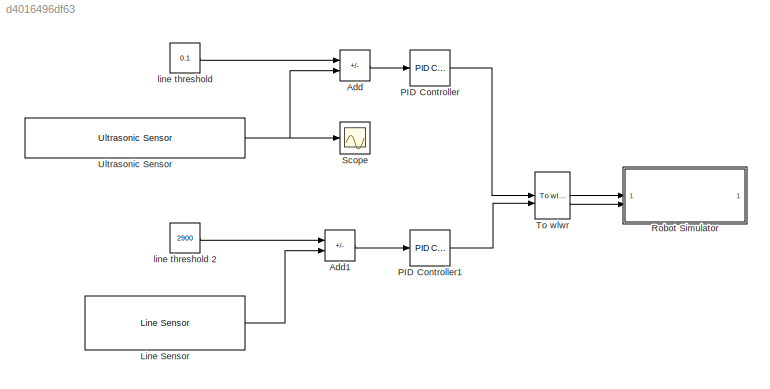
MODEL slx_d4016496df63
KIND model
CONFIG AbsTol = auto
CONFIG EnableMultiTasking = off
CONFIG FixedStep = 0.01
CONFIG MaxStep = auto
CONFIG MinStep = auto
CONFIG RelTol = 1e-3
CONFIG SampleTimeConstraint = Unconstrained
CONFIG SolverName = FixedStepDiscrete
CONFIG StartTime = 0.0
CONFIG StopTime = 2500
BLOCK [Sum] Add
  IconShape = rectangular
  Inputs = +-
BLOCK [Sum] Add1
  IconShape = rectangular
  Inputs = +-
BLOCK [Reference] Line Sensor  REF=mobileRoboticsTrainingLib/Line Sensor
  SourceBlock = mobileRoboticsTrainingLib/Line Sensor
  SourceProductName = Mobile Robotics Training Library
  SourceType = Line Sensor Simulation
BLOCK [Reference] PID Controller  REF=slpidlib/PID Controller
  LibrarySourceBlock = simulink/Continuous/PID Controller
  SourceBlock = slpidlib/PID Controller
  SourceType = PID 1dof
BLOCK [Reference] PID Controller1  REF=slpidlib/PID Controller
  LibrarySourceBlock = simulink/Continuous/PID Controller
  SourceBlock = slpidlib/PID Controller
  SourceType = PID 1dof
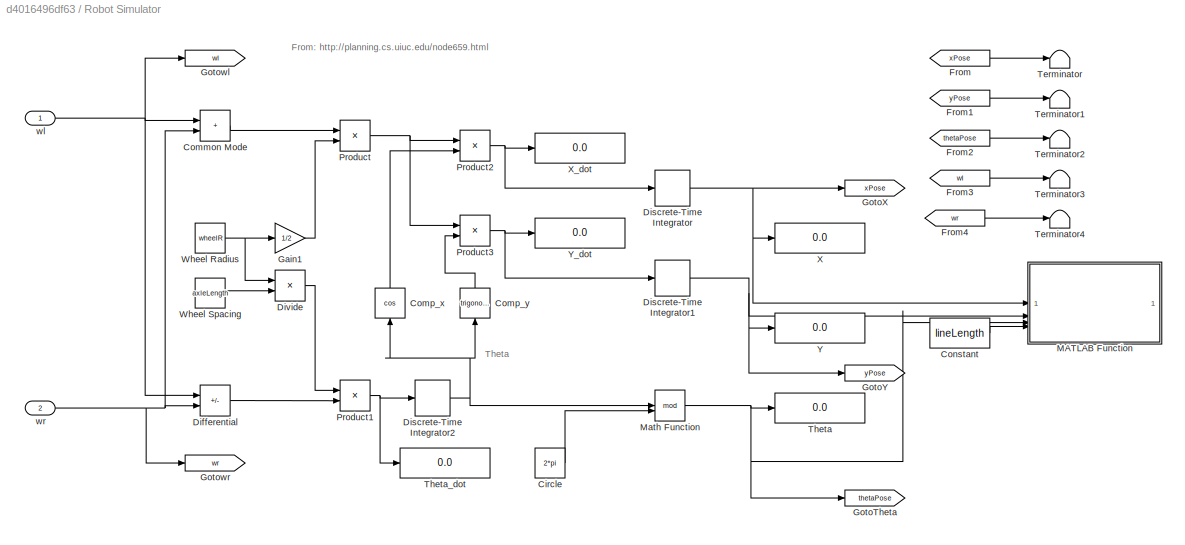
BLOCK [SubSystem] Robot Simulator
  AncestorBlock = mobileRoboticsTrainingLib/Robot Simulator
  Priority = 99
BLOCK [Constant] Robot Simulator/Circle
  Value = 2*pi
BLOCK [Sum] Robot Simulator/Common Mode
  IconShape = rectangular
BLOCK [Trigonometry] Robot Simulator/Comp_x
  NameLocation = right
  Operator = cos
BLOCK [Trigonometry] Robot Simulator/Comp_y
  NameLocation = right
BLOCK [Constant] Robot Simulator/Constant
  Value = lineLength
BLOCK [Sum] Robot Simulator/Differential
  IconShape = rectangular
  Inputs = -+
BLOCK [DiscreteIntegrator] Robot Simulator/Discrete-Time Integrator
  ICPrevOutput = DiscIntNeverNeededParam
  ICPrevScaledInput = DiscIntNeverNeededParam
  InitialCondition = startX
  InitialConditionSetting = Auto
  SampleTime = -1
BLOCK [DiscreteIntegrator] Robot Simulator/Discrete-Time Integrator1
  ICPrevOutput = DiscIntNeverNeededParam
  ICPrevScaledInput = DiscIntNeverNeededParam
  InitialCondition = startY
  InitialConditionSetting = Auto
  SampleTime = -1
BLOCK [DiscreteIntegrator] Robot Simulator/Discrete-Time Integrator2
  ICPrevOutput = DiscIntNeverNeededParam
  ICPrevScaledInput = DiscIntNeverNeededParam
  InitialCondition = startTheta*(pi/180)
  InitialConditionSetting = Auto
  SampleTime = -1
BLOCK [Product] Robot Simulator/Divide
  Inputs = */
BLOCK [From] Robot Simulator/From
  GotoTag = xPose
  TagVisibility = global
BLOCK [From] Robot Simulator/From1
  GotoTag = yPose
  TagVisibility = global
BLOCK [From] Robot Simulator/From2
  GotoTag = thetaPose
  TagVisibility = global
BLOCK [From] Robot Simulator/From3
  GotoTag = wl
  TagVisibility = global
BLOCK [From] Robot Simulator/From4
  GotoTag = wr
  TagVisibility = global
BLOCK [Gain] Robot Simulator/Gain1
  Gain = 1/2
BLOCK [Goto] Robot Simulator/GotoTheta
  GotoTag = thetaPose
  TagVisibility = global
BLOCK [Goto] Robot Simulator/GotoX
  GotoTag = xPose
  TagVisibility = global
BLOCK [Goto] Robot Simulator/GotoY
  GotoTag = yPose
  TagVisibility = global
BLOCK [Goto] Robot Simulator/Gotowl
  GotoTag = wl
  TagVisibility = global
BLOCK [Goto] Robot Simulator/Gotowr
  GotoTag = wr
  TagVisibility = global
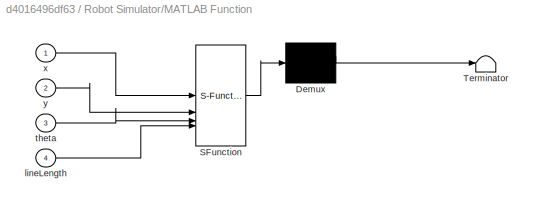
BLOCK [SubSystem] Robot Simulator/MATLAB Function
  ErrorFcn = Stateflow.Translate.translate
  PermitHierarchicalResolution = ExplicitOnly
  SFBlockType = MATLAB Function
  TreatAsAtomicUnit = on
BLOCK [Demux] Robot Simulator/MATLAB Function/ Demux 
  Outputs = 1
BLOCK [S-Function] Robot Simulator/MATLAB Function/ SFunction 
  EnableBusSupport = on
  FunctionName = sf_sfun
  PortCounts = [4 1]
  SFcnIsStateOwnerBlock = off
  SFunctionDeploymentMode = off
  Tag = Stateflow S-Function 1
BLOCK [Terminator] Robot Simulator/MATLAB Function/ Terminator 
BLOCK [Inport] Robot Simulator/MATLAB Function/lineLength
  Port = 4
BLOCK [Inport] Robot Simulator/MATLAB Function/theta
  Port = 3
BLOCK [Inport] Robot Simulator/MATLAB Function/x
BLOCK [Inport] Robot Simulator/MATLAB Function/y
  Port = 2
BLOCK [Math] Robot Simulator/Math Function
  Operator = mod
  SignedPower = on
BLOCK [Product] Robot Simulator/Product
  RndMeth = Zero
BLOCK [Product] Robot Simulator/Product1
  RndMeth = Zero
BLOCK [Product] Robot Simulator/Product2
  RndMeth = Zero
BLOCK [Product] Robot Simulator/Product3
  RndMeth = Zero
BLOCK [Terminator] Robot Simulator/Terminator
BLOCK [Terminator] Robot Simulator/Terminator1
BLOCK [Terminator] Robot Simulator/Terminator2
BLOCK [Terminator] Robot Simulator/Terminator3
BLOCK [Terminator] Robot Simulator/Terminator4
BLOCK [Display] Robot Simulator/Theta
  Decimation = 1
BLOCK [Display] Robot Simulator/Theta_dot
  Decimation = 1
BLOCK [Constant] Robot Simulator/Wheel Radius
  Value = wheelR
BLOCK [Constant] Robot Simulator/Wheel Spacing
  Value = axleLength
BLOCK [Display] Robot Simulator/X
  Decimation = 1
BLOCK [Display] Robot Simulator/X_dot
  Decimation = 1
BLOCK [Display] Robot Simulator/Y
  Decimation = 1
BLOCK [Display] Robot Simulator/Y_dot
  Decimation = 1
BLOCK [Inport] Robot Simulator/wl
BLOCK [Inport] Robot Simulator/wr
  Port = 2
BLOCK [Scope] Scope
  Floating = off
  NumInputPorts = 1
  ScopeSpecificationString = Simulink.scopes.TimeScopeBlockCfg('CurrentConfiguration', extmgr.ConfigurationSet(extmgr.Configuration('Core','General UI',true),extmgr.Configuration('Core','Source UI',true),extmgr.Configuration('Sources','WiredSimulink',true),extmgr.Configuration('Visuals','Time Domain',true,'SerializedDisplays',{struct('MinYLimReal','-0.25','MaxYLimReal','2.25','YLabelReal','','MinYLimMag','0.00000','MaxYLimMag...<+1391ch>
BLOCK [Reference] To wlwr  REF=mobileRoboticsTrainingLib/To wlwr
  SourceBlock = mobileRoboticsTrainingLib/To wlwr
  SourceProductName = Mobile Robotics Training Library
  SourceType = To wlwr
BLOCK [Reference] Ultrasonic Sensor  REF=mobileRoboticsTrainingLib/Ultrasonic Sensor
  SourceBlock = mobileRoboticsTrainingLib/Ultrasonic Sensor
  SourceProductName = Mobile Robotics Training Library
  SourceType = Ultrasonic Sensor Simulation
BLOCK [Constant] line threshold
  Value = 0.1
BLOCK [Constant] line threshold 2
  Value = 2900
ANNOTATION Robot Simulator: From: http://planning.cs.uiuc.edu/node659.html
ANNOTATION Robot Simulator: Theta
LINE Add1:1 -> PID Controller1:1
LINE Add:1 -> PID Controller:1
LINE Line Sensor:1 -> Add1:2
LINE PID Controller1:1 -> To wlwr:2
LINE PID Controller:1 -> To wlwr:1
LINE To wlwr:1 -> Robot Simulator:1
LINE To wlwr:2 -> Robot Simulator:2
NET Ultrasonic Sensor:1 -> Add:2, Scope:1
LINE line threshold 2:1 -> Add1:1
LINE line threshold:1 -> Add:1
note: NET lines group one-source signal fan-out (src -> all destinations, sorted); 1:1 wires keep LINE
CHART Robot Simulator/MATLAB Function states=1 transitions=1
  STATE_LABEL 'eML_blk_kernel()'
  STATE_LABEL "SCRIPT:\nfunction plotRobot(x,y,theta,lineLength)\n% Get plot details\ncoder.extrinsic('evalin','plot')\nph1 = evalin('base','PlotHandle1');\nph2 = evalin('base','PlotHandle2');\n\n% Find length orientation line\nxp = [x x+lineLength*cos(theta)];\nyp = [y y+lineLength*sin(theta)];\n\n% Plot robot\nset(ph1,'xdata',xp,'ydata',yp);\nset(ph2,'xdata',x,'ydata',y);\ndrawnow('limitrate')"
CHART  states=0 transitions=0
